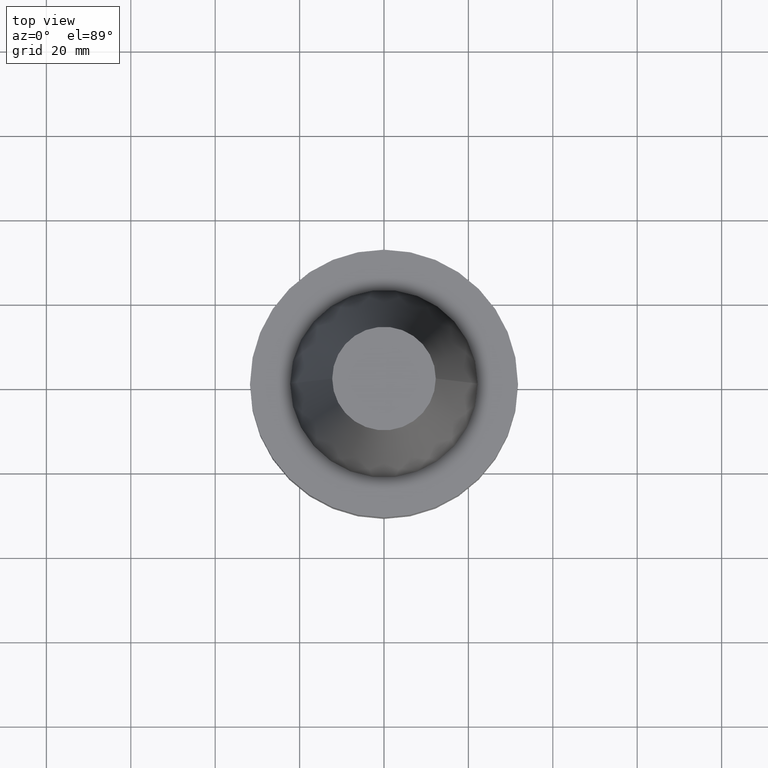
[diagram: clean part render]
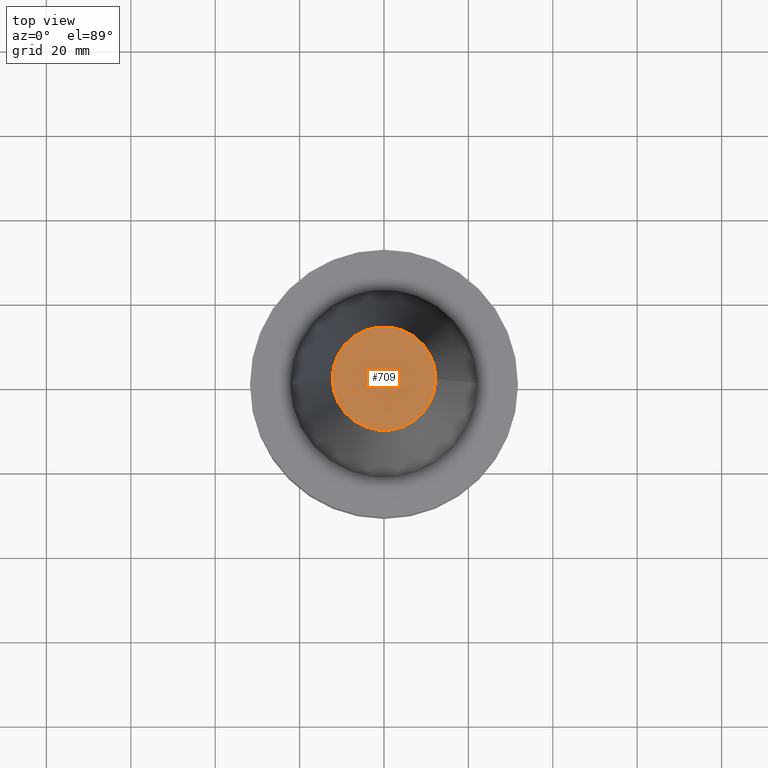
[diagram: same view with one face highlighted and labeled with its STEP entity id]
A machine part, top view. The second image highlights one B-rep face of the part: STEP entity #709.
In plain terms, the highlighted planar face has unit normal (0, 0, -1).
Its self-contained STEP definition (entity closure, byte-faithful):
#40 = ORIENTED_EDGE ( 'NONE', *, *, #123, .T. ) ;
#54 = DIRECTION ( 'NONE',  ( 0.000000000000000000, 0.000000000000000000, -1.000000000000000000 ) ) ;
#58 = CARTESIAN_POINT ( 'NONE',  ( 0.000000000000000000, 0.000000000000000000, 68.25000000000000000 ) ) ;
#92 = DIRECTION ( 'NONE',  ( -0.000000000000000000, -0.000000000000000000, 1.000000000000000000 ) ) ;
#97 = EDGE_CURVE ( 'NONE', #417, #177, #458, .T. ) ;
#118 = CARTESIAN_POINT ( 'NONE',  ( 0.000000000000000000, 12.27178102086201150, 68.25000000000000000 ) ) ;
#123 = EDGE_CURVE ( 'NONE', #177, #417, #144, .T. ) ;
#144 = CIRCLE ( 'NONE', #446, 12.27178102086201150 ) ;
#151 = CARTESIAN_POINT ( 'NONE',  ( -12.27178102086201150, 0.000000000000000000, 68.25000000000000000 ) ) ;
#166 = CARTESIAN_POINT ( 'NONE',  ( 0.000000000000000000, 0.000000000000000000, 68.25000000000000000 ) ) ;
#177 = VERTEX_POINT ( 'NONE', #151 ) ;
#188 = DIRECTION ( 'NONE',  ( -1.000000000000000000, 0.000000000000000000, -0.000000000000000000 ) ) ;
#290 = EDGE_LOOP ( 'NONE', ( #40, #295 ) ) ;
#295 = ORIENTED_EDGE ( 'NONE', *, *, #97, .T. ) ;
#307 = DIRECTION ( 'NONE',  ( -0.000000000000000000, -0.000000000000000000, 1.000000000000000000 ) ) ;
#325 = DIRECTION ( 'NONE',  ( 1.000000000000000000, 0.000000000000000000, 0.000000000000000000 ) ) ;
#338 = AXIS2_PLACEMENT_3D ( 'NONE', #118, #54, #188 ) ;
#339 = AXIS2_PLACEMENT_3D ( 'NONE', #58, #307, #773 ) ;
#417 = VERTEX_POINT ( 'NONE', #437 ) ;
#437 = CARTESIAN_POINT ( 'NONE',  ( 12.27178102086201150, 2.112318622904291439E-15, 68.25000000000000000 ) ) ;
#446 = AXIS2_PLACEMENT_3D ( 'NONE', #166, #92, #325 ) ;
#458 = CIRCLE ( 'NONE', #339, 12.27178102086201150 ) ;
#651 = PLANE ( 'NONE',  #338 ) ;
#704 = FACE_OUTER_BOUND ( 'NONE', #290, .T. ) ;
#709 = ADVANCED_FACE ( 'NONE', ( #704 ), #651, .F. ) ;
#773 = DIRECTION ( 'NONE',  ( 1.000000000000000000, 0.000000000000000000, 0.000000000000000000 ) ) ;